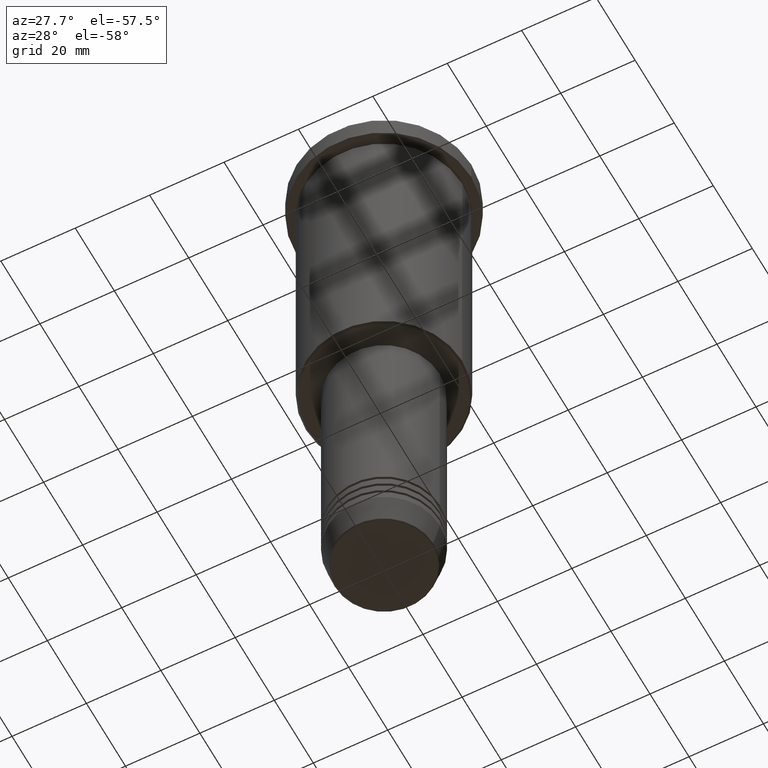
[diagram: clean part render]
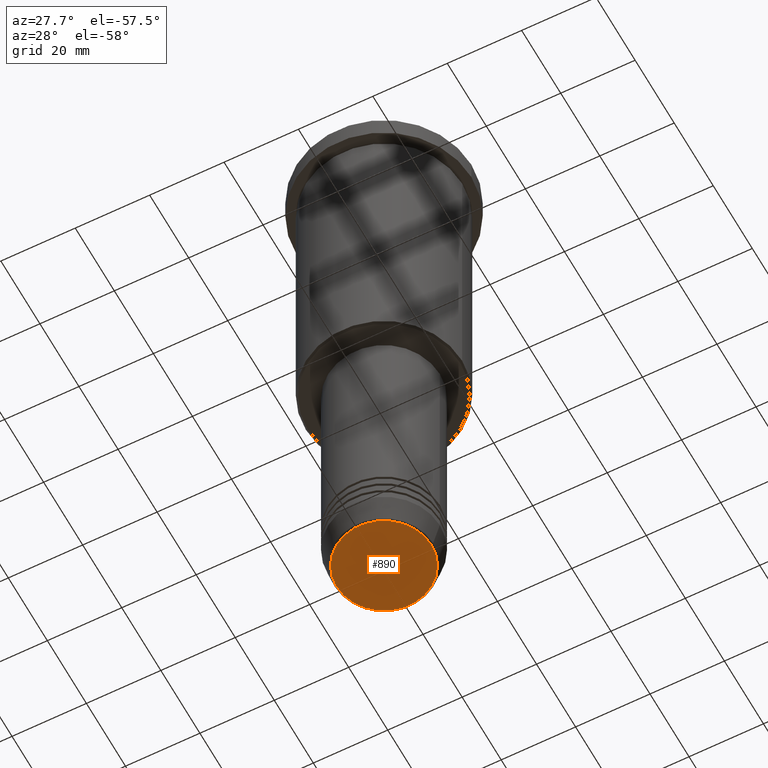
[diagram: same view with one face highlighted and labeled with its STEP entity id]
A machine part, auxiliary view. The second image highlights one B-rep face of the part: STEP entity #890.
In plain terms, the highlighted planar face has unit normal (0, -0, 1).
Its self-contained STEP definition (entity closure, byte-faithful):
#46 = ORIENTED_EDGE ( 'NONE', *, *, #887, .T. ) ;
#137 = AXIS2_PLACEMENT_3D ( 'NONE', #977, #1068, #696 ) ;
#167 = FACE_OUTER_BOUND ( 'NONE', #841, .T. ) ;
#253 = DIRECTION ( 'NONE',  ( 1.000000000000000000, 0.000000000000000000, 0.000000000000000000 ) ) ;
#304 = AXIS2_PLACEMENT_3D ( 'NONE', #523, #782, #253 ) ;
#353 = ORIENTED_EDGE ( 'NONE', *, *, #688, .T. ) ;
#477 = CARTESIAN_POINT ( 'NONE',  ( -12.74069215899266538, 1.589857736427681824E-15, -160.9999999999999716 ) ) ;
#523 = CARTESIAN_POINT ( 'NONE',  ( 0.000000000000000000, 0.000000000000000000, -160.9999999999999716 ) ) ;
#597 = CIRCLE ( 'NONE', #137, 12.74069215899266538 ) ;
#616 = DIRECTION ( 'NONE',  ( 0.000000000000000000, 0.000000000000000000, -1.000000000000000000 ) ) ;
#688 = EDGE_CURVE ( 'NONE', #1112, #1148, #597, .T. ) ;
#696 = DIRECTION ( 'NONE',  ( 1.000000000000000000, 0.000000000000000000, 0.000000000000000000 ) ) ;
#713 = CIRCLE ( 'NONE', #1180, 12.74069215899266538 ) ;
#764 = PLANE ( 'NONE',  #304 ) ;
#782 = DIRECTION ( 'NONE',  ( 0.000000000000000000, -0.000000000000000000, 1.000000000000000000 ) ) ;
#841 = EDGE_LOOP ( 'NONE', ( #353, #46 ) ) ;
#853 = DIRECTION ( 'NONE',  ( 1.000000000000000000, 0.000000000000000000, 0.000000000000000000 ) ) ;
#887 = EDGE_CURVE ( 'NONE', #1148, #1112, #713, .T. ) ;
#890 = ADVANCED_FACE ( 'NONE', ( #167 ), #764, .F. ) ;
#928 = CARTESIAN_POINT ( 'NONE',  ( 12.74069215899266538, 0.000000000000000000, -160.9999999999999716 ) ) ;
#972 = CARTESIAN_POINT ( 'NONE',  ( 0.000000000000000000, 0.000000000000000000, -160.9999999999999716 ) ) ;
#977 = CARTESIAN_POINT ( 'NONE',  ( 0.000000000000000000, 0.000000000000000000, -160.9999999999999716 ) ) ;
#1068 = DIRECTION ( 'NONE',  ( 0.000000000000000000, 0.000000000000000000, -1.000000000000000000 ) ) ;
#1112 = VERTEX_POINT ( 'NONE', #928 ) ;
#1148 = VERTEX_POINT ( 'NONE', #477 ) ;
#1180 = AXIS2_PLACEMENT_3D ( 'NONE', #972, #616, #853 ) ;